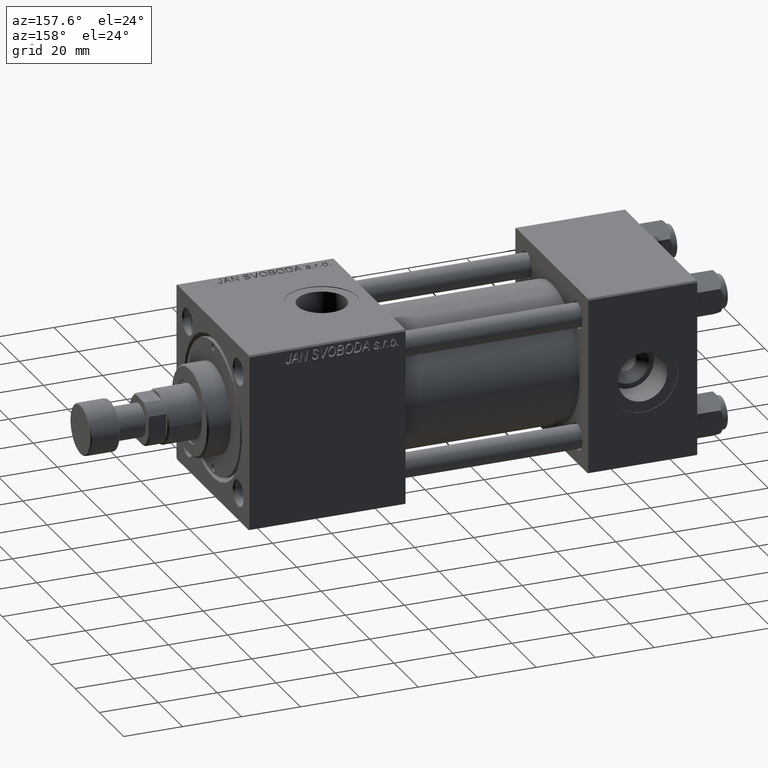
[diagram: clean part render]
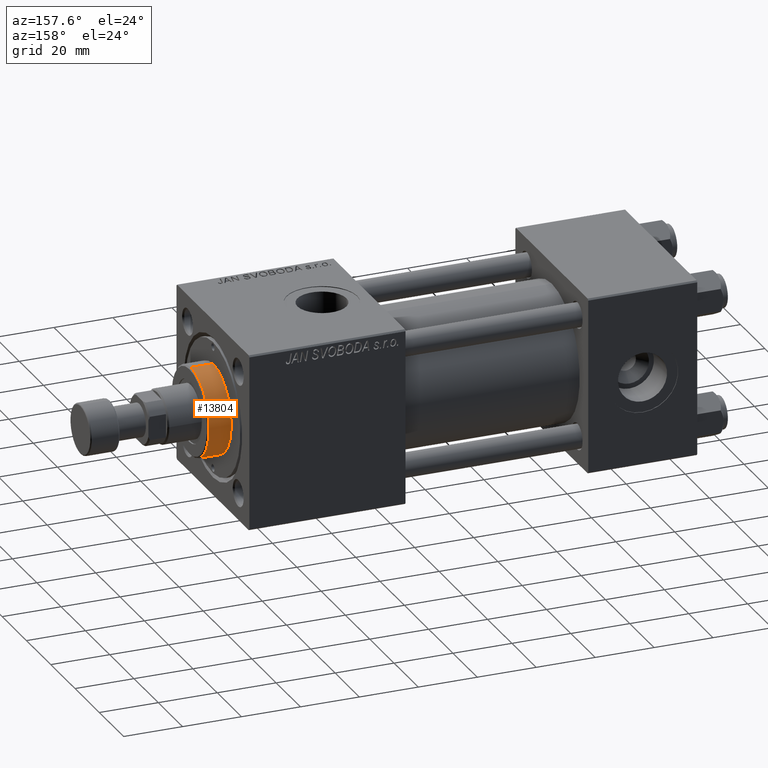
[diagram: same view with one face highlighted and labeled with its STEP entity id]
A machine part, auxiliary view. The second image highlights one B-rep face of the part: STEP entity #13804.
In plain terms, the highlighted cylindrical surface (partial cylindrical patch) has radius 15 mm, axis along (-1, -0, -0).
Its self-contained STEP definition (entity closure, byte-faithful):
#46 = AXIS2_PLACEMENT_3D ( 'NONE', #11003, #31296, #16059 ) ;
#2156 = CARTESIAN_POINT ( 'NONE',  ( 15.00000000000000000, 1.836970198721029589E-15, 36.69999999999999574 ) ) ;
#2172 = VECTOR ( 'NONE', #11990, 1000.000000000000000 ) ;
#4257 = VERTEX_POINT ( 'NONE', #49761 ) ;
#5135 = CIRCLE ( 'NONE', #46, 15.00000000000000000 ) ;
#5369 = CARTESIAN_POINT ( 'NONE',  ( 0.000000000000000000, 0.000000000000000000, 36.69999999999999574 ) ) ;
#7232 = AXIS2_PLACEMENT_3D ( 'NONE', #28697, #11635, #36710 ) ;
#7375 = ORIENTED_EDGE ( 'NONE', *, *, #14489, .T. ) ;
#10061 = CARTESIAN_POINT ( 'NONE',  ( 15.00000000000000000, 1.836970198721029589E-15, 28.69999999999999929 ) ) ;
#10763 = VERTEX_POINT ( 'NONE', #42006 ) ;
#11003 = CARTESIAN_POINT ( 'NONE',  ( 0.000000000000000000, 0.000000000000000000, 36.20000000000000284 ) ) ;
#11635 = DIRECTION ( 'NONE',  ( 0.000000000000000000, 0.000000000000000000, 1.000000000000000000 ) ) ;
#11990 = DIRECTION ( 'NONE',  ( -0.000000000000000000, -0.000000000000000000, -1.000000000000000000 ) ) ;
#13804 = ADVANCED_FACE ( 'NONE', ( #26198 ), #42770, .T. ) ;
#14489 = EDGE_CURVE ( 'NONE', #20681, #4257, #45601, .T. ) ;
#15755 = EDGE_CURVE ( 'NONE', #32145, #4257, #19711, .T. ) ;
#16059 = DIRECTION ( 'NONE',  ( 1.000000000000000000, 0.000000000000000000, 0.000000000000000000 ) ) ;
#17622 = DIRECTION ( 'NONE',  ( -0.000000000000000000, -0.000000000000000000, -1.000000000000000000 ) ) ;
#18227 = EDGE_LOOP ( 'NONE', ( #38529, #32443, #7375, #49567 ) ) ;
#18442 = DIRECTION ( 'NONE',  ( -1.000000000000000000, 0.000000000000000000, 0.000000000000000000 ) ) ;
#19711 = LINE ( 'NONE', #19967, #2172 ) ;
#19967 = CARTESIAN_POINT ( 'NONE',  ( -15.00000000000000000, 0.000000000000000000, 36.69999999999999574 ) ) ;
#20681 = VERTEX_POINT ( 'NONE', #10061 ) ;
#25199 = AXIS2_PLACEMENT_3D ( 'NONE', #5369, #47029, #18442 ) ;
#26198 = FACE_OUTER_BOUND ( 'NONE', #18227, .T. ) ;
#28697 = CARTESIAN_POINT ( 'NONE',  ( 0.000000000000000000, 0.000000000000000000, 28.69999999999999929 ) ) ;
#31296 = DIRECTION ( 'NONE',  ( 0.000000000000000000, 0.000000000000000000, -1.000000000000000000 ) ) ;
#32145 = VERTEX_POINT ( 'NONE', #33741 ) ;
#32443 = ORIENTED_EDGE ( 'NONE', *, *, #37992, .T. ) ;
#33741 = CARTESIAN_POINT ( 'NONE',  ( -15.00000000000000000, 0.000000000000000000, 36.20000000000000284 ) ) ;
#36710 = DIRECTION ( 'NONE',  ( 1.000000000000000000, 0.000000000000000000, 0.000000000000000000 ) ) ;
#37992 = EDGE_CURVE ( 'NONE', #10763, #20681, #41391, .T. ) ;
#38529 = ORIENTED_EDGE ( 'NONE', *, *, #49555, .T. ) ;
#41391 = LINE ( 'NONE', #2156, #51720 ) ;
#42006 = CARTESIAN_POINT ( 'NONE',  ( 15.00000000000000000, 1.836970198721029589E-15, 36.20000000000000284 ) ) ;
#42770 = CYLINDRICAL_SURFACE ( 'NONE', #25199, 15.00000000000000000 ) ;
#45601 = CIRCLE ( 'NONE', #7232, 15.00000000000000000 ) ;
#47029 = DIRECTION ( 'NONE',  ( -0.000000000000000000, -0.000000000000000000, -1.000000000000000000 ) ) ;
#49555 = EDGE_CURVE ( 'NONE', #32145, #10763, #5135, .T. ) ;
#49567 = ORIENTED_EDGE ( 'NONE', *, *, #15755, .F. ) ;
#49761 = CARTESIAN_POINT ( 'NONE',  ( -15.00000000000000000, 0.000000000000000000, 28.69999999999999929 ) ) ;
#51720 = VECTOR ( 'NONE', #17622, 1000.000000000000000 ) ;